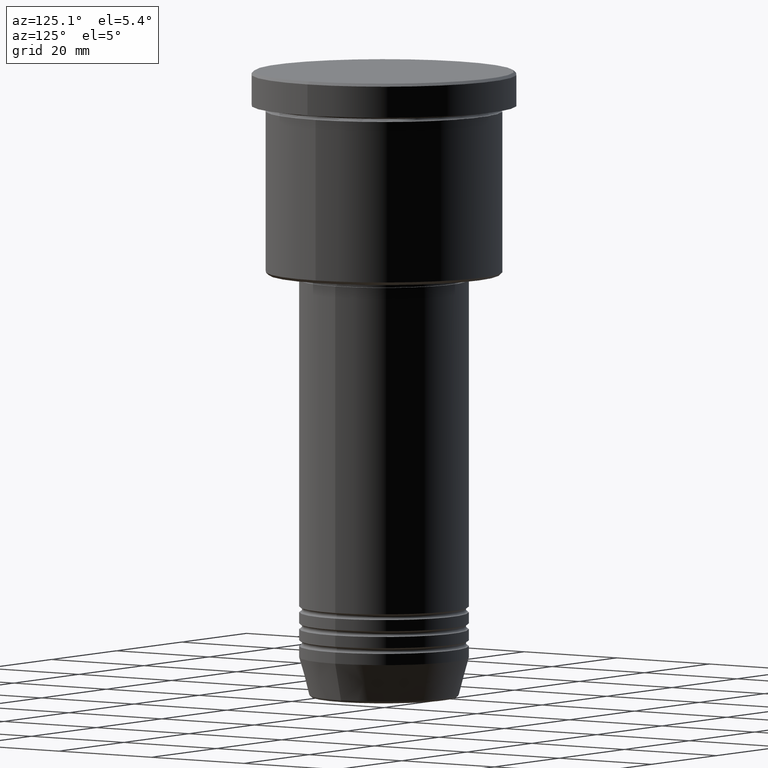
[diagram: clean part render]
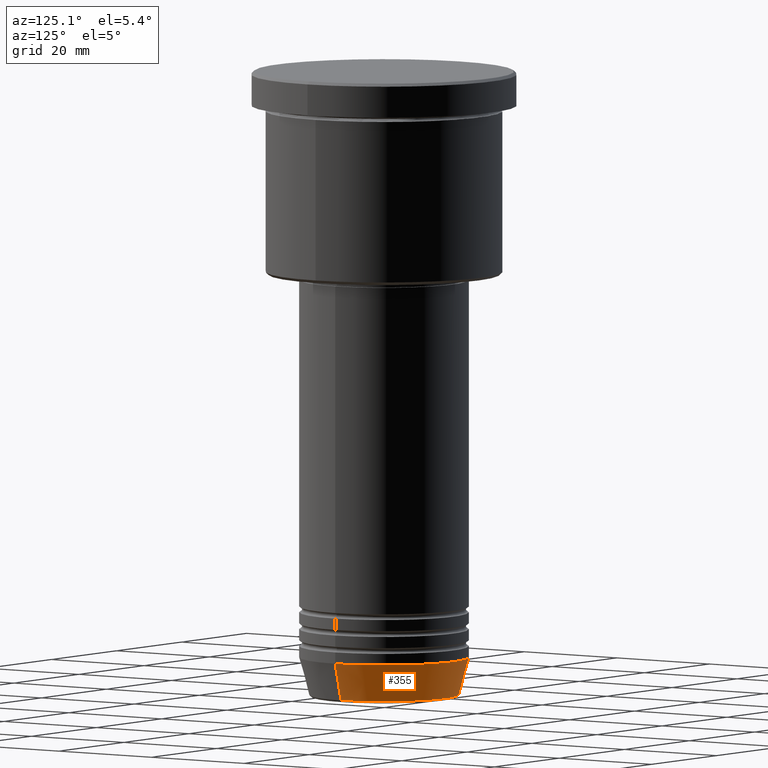
[diagram: same view with one face highlighted and labeled with its STEP entity id]
A machine part, auxiliary view. The second image highlights one B-rep face of the part: STEP entity #355.
In plain terms, the highlighted conical surface has half-angle 15 deg.
Its self-contained STEP definition (entity closure, byte-faithful):
#10 = CONICAL_SURFACE ( 'NONE', #1011, 15.00000000000000000, 0.2617993877991500740 ) ;
#13 = AXIS2_PLACEMENT_3D ( 'NONE', #342, #787, #228 ) ;
#20 = DIRECTION ( 'NONE',  ( -0.000000000000000000, -0.000000000000000000, 1.000000000000000000 ) ) ;
#43 = CARTESIAN_POINT ( 'NONE',  ( 0.000000000000000000, 0.000000000000000000, -110.6294095225512564 ) ) ;
#112 = VERTEX_POINT ( 'NONE', #471 ) ;
#121 = DIRECTION ( 'NONE',  ( 1.000000000000000000, 0.000000000000000000, 0.000000000000000000 ) ) ;
#219 = DIRECTION ( 'NONE',  ( 0.2588190451025213501, 0.000000000000000000, 0.9659258262890680902 ) ) ;
#228 = DIRECTION ( 'NONE',  ( 1.000000000000000000, 0.000000000000000000, 0.000000000000000000 ) ) ;
#246 = ORIENTED_EDGE ( 'NONE', *, *, #761, .F. ) ;
#247 = CARTESIAN_POINT ( 'NONE',  ( 13.22365507213718949, 0.000000000000000000, -110.6294095225512564 ) ) ;
#286 = VERTEX_POINT ( 'NONE', #591 ) ;
#296 = CARTESIAN_POINT ( 'NONE',  ( 0.000000000000000000, 0.000000000000000000, -104.0000000000000142 ) ) ;
#320 = VECTOR ( 'NONE', #219, 1000.000000000000000 ) ;
#342 = CARTESIAN_POINT ( 'NONE',  ( 0.000000000000000000, 0.000000000000000000, -104.0000000000000142 ) ) ;
#355 = ADVANCED_FACE ( 'NONE', ( #1110 ), #10, .T. ) ;
#411 = CARTESIAN_POINT ( 'NONE',  ( 15.00000000000000000, 0.000000000000000000, -104.0000000000000142 ) ) ;
#415 = VERTEX_POINT ( 'NONE', #247 ) ;
#471 = CARTESIAN_POINT ( 'NONE',  ( -13.22365507213718949, 1.728200442216588386E-15, -110.6294095225512564 ) ) ;
#529 = LINE ( 'NONE', #1132, #1034 ) ;
#556 = ORIENTED_EDGE ( 'NONE', *, *, #1119, .T. ) ;
#591 = CARTESIAN_POINT ( 'NONE',  ( -15.00000000000000000, 1.836970198721029589E-15, -104.0000000000000142 ) ) ;
#596 = AXIS2_PLACEMENT_3D ( 'NONE', #43, #20, #1017 ) ;
#615 = CIRCLE ( 'NONE', #13, 15.00000000000000000 ) ;
#656 = VERTEX_POINT ( 'NONE', #411 ) ;
#676 = ORIENTED_EDGE ( 'NONE', *, *, #835, .T. ) ;
#678 = LINE ( 'NONE', #1026, #320 ) ;
#761 = EDGE_CURVE ( 'NONE', #415, #656, #678, .T. ) ;
#774 = EDGE_LOOP ( 'NONE', ( #556, #676, #890, #246 ) ) ;
#787 = DIRECTION ( 'NONE',  ( -0.000000000000000000, -0.000000000000000000, 1.000000000000000000 ) ) ;
#813 = CIRCLE ( 'NONE', #596, 13.22365507213718949 ) ;
#835 = EDGE_CURVE ( 'NONE', #112, #286, #529, .T. ) ;
#860 = DIRECTION ( 'NONE',  ( -0.2588190451025213501, 3.169619151431772337E-17, 0.9659258262890680902 ) ) ;
#890 = ORIENTED_EDGE ( 'NONE', *, *, #912, .F. ) ;
#912 = EDGE_CURVE ( 'NONE', #656, #286, #615, .T. ) ;
#931 = DIRECTION ( 'NONE',  ( -0.000000000000000000, -0.000000000000000000, 1.000000000000000000 ) ) ;
#1011 = AXIS2_PLACEMENT_3D ( 'NONE', #296, #931, #121 ) ;
#1017 = DIRECTION ( 'NONE',  ( 1.000000000000000000, 0.000000000000000000, 0.000000000000000000 ) ) ;
#1026 = CARTESIAN_POINT ( 'NONE',  ( 15.00000000000000000, 0.000000000000000000, -104.0000000000000142 ) ) ;
#1034 = VECTOR ( 'NONE', #860, 1000.000000000000000 ) ;
#1110 = FACE_OUTER_BOUND ( 'NONE', #774, .T. ) ;
#1119 = EDGE_CURVE ( 'NONE', #415, #112, #813, .T. ) ;
#1132 = CARTESIAN_POINT ( 'NONE',  ( -15.00000000000000000, 1.836970198721029589E-15, -104.0000000000000142 ) ) ;